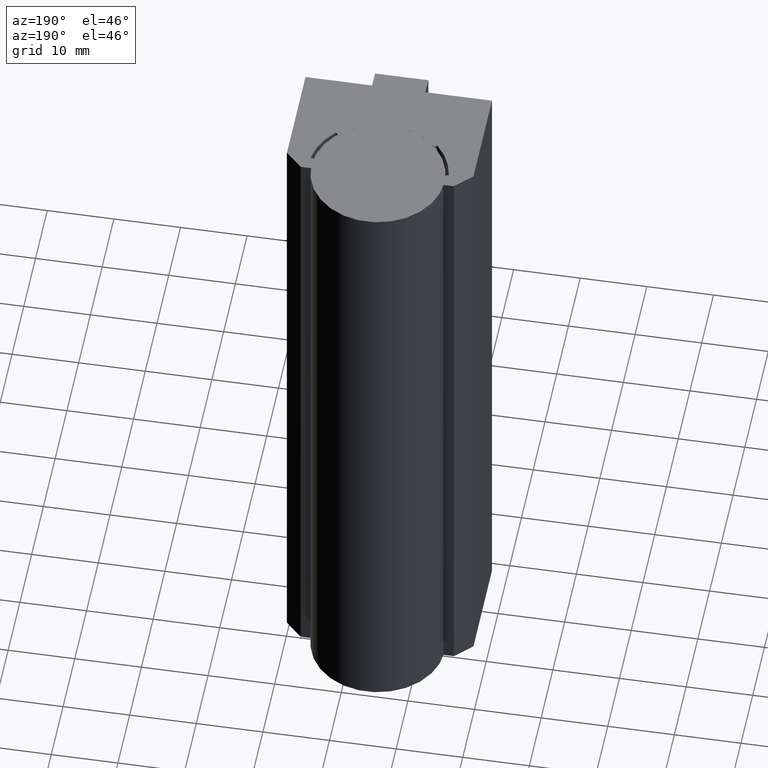
[diagram: clean part render]
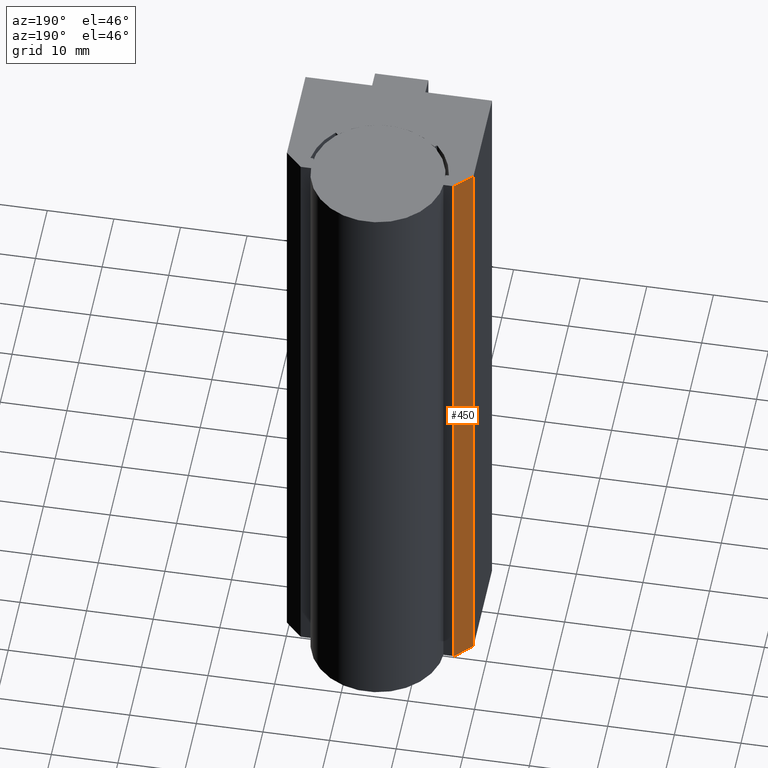
[diagram: same view with one face highlighted and labeled with its STEP entity id]
A machine part, auxiliary view. The second image highlights one B-rep face of the part: STEP entity #450.
In plain terms, the highlighted planar face has unit normal (-0.7071, 0.7071, 0).
Its self-contained STEP definition (entity closure, byte-faithful):
#38=FACE_OUTER_BOUND('',#63,.T.);
#63=EDGE_LOOP('',(#321,#322,#323,#324));
#101=LINE('',#693,#156);
#103=LINE('',#697,#158);
#104=LINE('',#699,#159);
#105=LINE('',#700,#160);
#156=VECTOR('',#559,10.);
#158=VECTOR('',#563,10.);
#159=VECTOR('',#564,10.);
#160=VECTOR('',#565,10.);
#208=VERTEX_POINT('',#690);
#209=VERTEX_POINT('',#692);
#210=VERTEX_POINT('',#696);
#211=VERTEX_POINT('',#698);
#253=EDGE_CURVE('',#209,#208,#101,.T.);
#255=EDGE_CURVE('',#208,#210,#103,.T.);
#256=EDGE_CURVE('',#211,#210,#104,.T.);
#257=EDGE_CURVE('',#211,#209,#105,.T.);
#321=ORIENTED_EDGE('',*,*,#255,.T.);
#322=ORIENTED_EDGE('',*,*,#256,.F.);
#323=ORIENTED_EDGE('',*,*,#257,.T.);
#324=ORIENTED_EDGE('',*,*,#253,.T.);
#429=PLANE('',#499);
#450=ADVANCED_FACE('',(#38),#429,.T.);
#499=AXIS2_PLACEMENT_3D('',#695,#561,#562);
#559=DIRECTION('',(0.,0.,1.));
#561=DIRECTION('center_axis',(-0.707106781186548,0.707106781186547,0.));
#562=DIRECTION('ref_axis',(0.,0.,1.));
#563=DIRECTION('',(0.707106781186547,0.707106781186548,0.));
#564=DIRECTION('',(0.,0.,1.));
#565=DIRECTION('',(-0.707106781186547,-0.707106781186548,0.));
#690=CARTESIAN_POINT('',(-27.8756867600048,18.8025117127487,100.));
#692=CARTESIAN_POINT('',(-27.8756867600048,18.8025117127487,0.));
#693=CARTESIAN_POINT('',(-27.8756867600048,18.8025117127487,0.));
#695=CARTESIAN_POINT('Origin',(-27.8756867600048,18.8025117127487,0.));
#696=CARTESIAN_POINT('',(-25.3756867600048,21.3025117127487,100.));
#697=CARTESIAN_POINT('',(-25.3756867600048,21.3025117127487,100.));
#698=CARTESIAN_POINT('',(-25.3756867600048,21.3025117127487,0.));
#699=CARTESIAN_POINT('',(-25.3756867600048,21.3025117127487,0.));
#700=CARTESIAN_POINT('',(-25.3756867600048,21.3025117127487,0.));